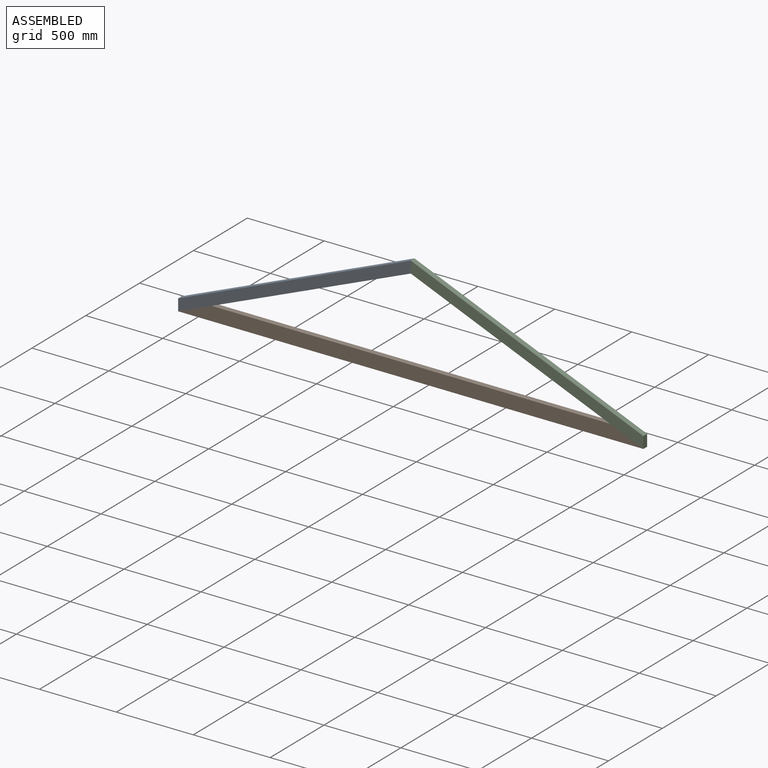
[diagram: assembled view]
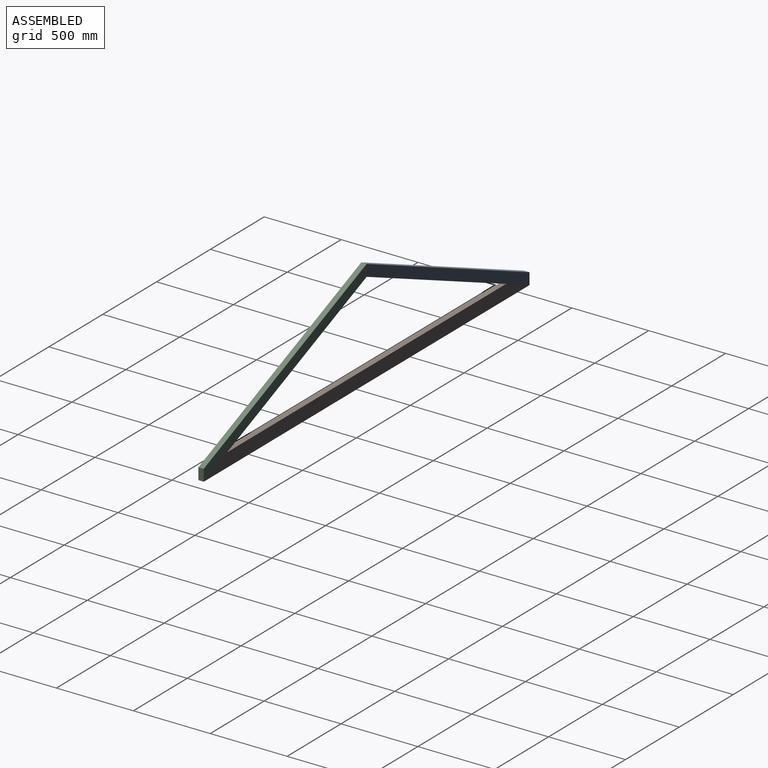
[diagram: assembled view, second angle]
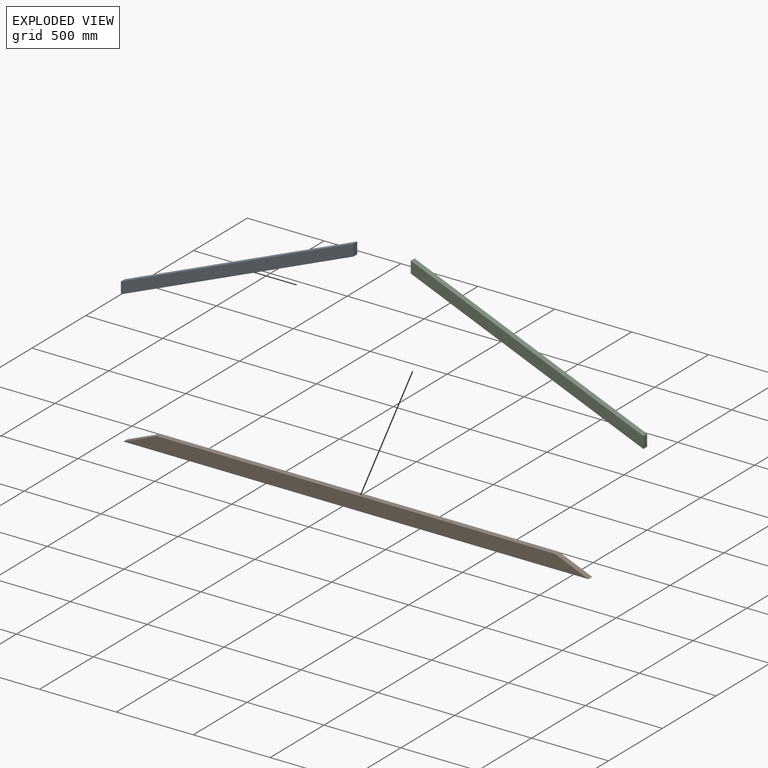
[diagram: exploded view]
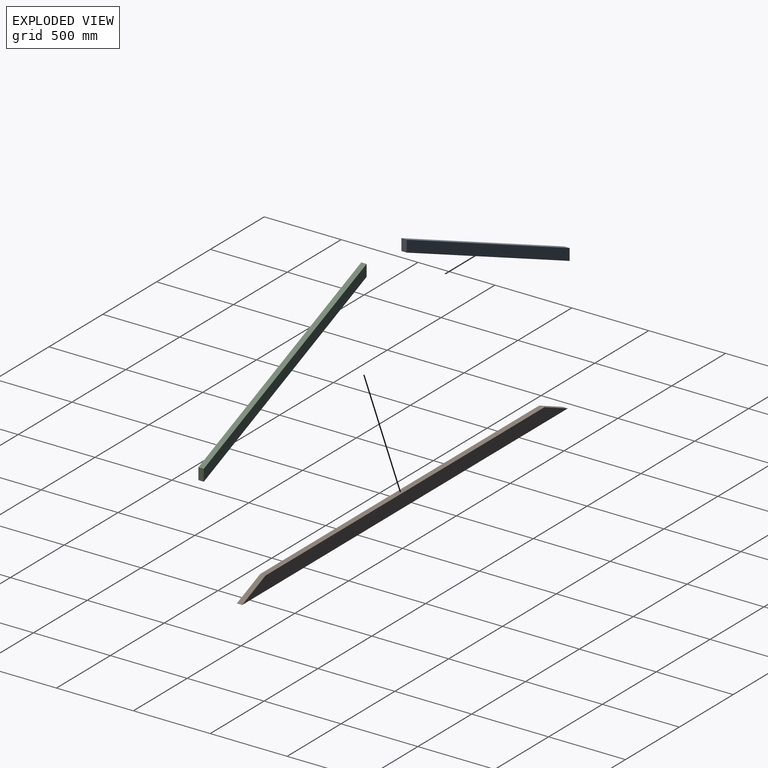
[diagram: exploded view, second angle]
ASSEMBLY  parts=3 mates=2
PART A: 6 faces, bbox 1512.5x702.3x35 mm
  f0: plane 1512.5x626.5mm, normal (0.38,0.92,0), area 57299.1mm2, adj f2,f3,f4,f5
  f1: plane 1512.5x626.5mm, normal (-0.38,-0.92,0), area 57299.1mm2, adj f2,f3,f4,f5
  f2: plane 1512.5x702.27mm, normal (0,0,1), area 114598.3mm2, adj f0,f1,f4,f5
  f3: plane 1512.5x702.27mm, normal (0,0,-1), area 114598.3mm2, adj f0,f1,f4,f5
  f4: plane 75.77x35mm, normal (-1,0,0), area 2651.9mm2, adj f0,f1,f2,f3
  f5: plane 75.77x35mm, normal (1,0,0), area 2651.9mm2, adj f0,f1,f2,f3
PART B: 6 faces, bbox 3025x90x35 mm
  f0: plane 217.28x90mm, normal (-0.38,0.92,0), area 8231.3mm2, adj f1,f3,f4,f5
  f1: plane 3025x35mm, normal (0,-1,0), area 105875mm2, adj f0,f2,f4,f5
  f2: plane 217.28x90mm, normal (0.38,0.92,0), area 8231.3mm2, adj f1,f3,f4,f5
  f3: plane 2590.44x35mm, normal (0,1,0), area 90665.5mm2, adj f0,f2,f4,f5
  f4: plane 3025x90mm, normal (0,0,1), area 252694.9mm2, adj f0,f1,f2,f3
  f5: plane 3025x90mm, normal (0,0,-1), area 252694.9mm2, adj f0,f1,f2,f3
PART C: same geometry as A
PLACE A rot(axis=(0,0.71,0.71),180deg) t=(573.35,232.58,1510.57)mm
PLACE B rot(axis=(1,0,0),90deg) t=(-21.02,267.58,1375.77)mm
PLACE C rot(axis=(1,0,0),90deg) t=(-570.82,267.58,1510.57)mm
MATE fastened A.f4 <-> C.f4  axis (1,0,0) through (1.26,250.08,70.83)mm
MATE fastened B.f2 <-> C.f1  axis (0.38,0,0.92) through (1513.76,250.08,-593.55)mm
